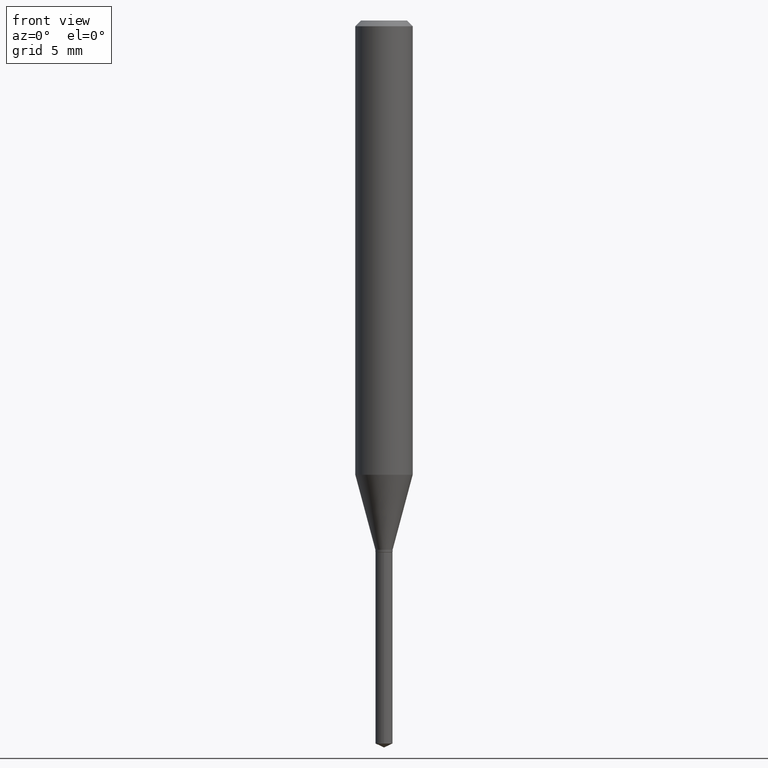
[diagram: clean part render]
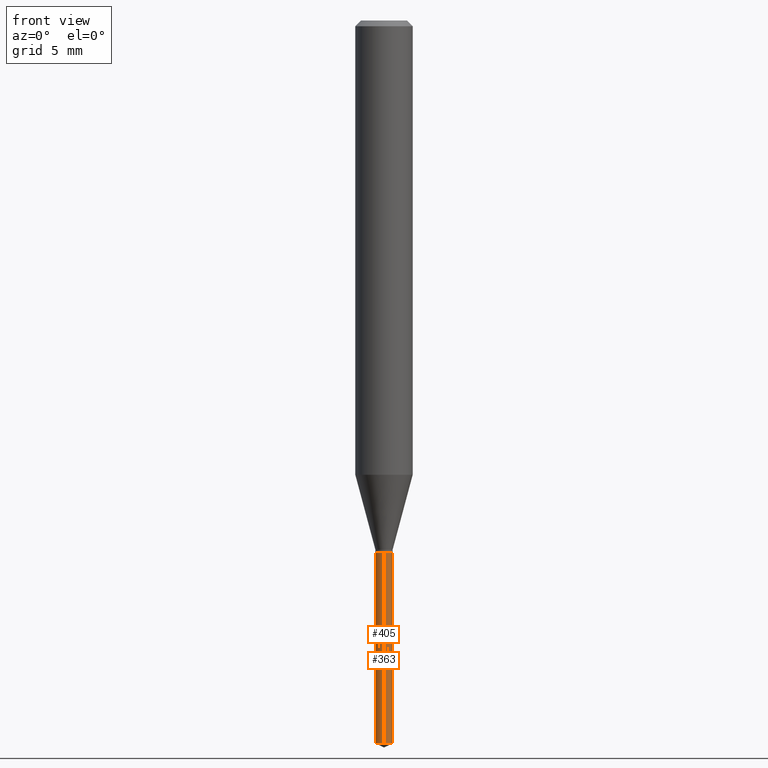
[diagram: same view with one multi-face feature highlighted, each face labeled with its STEP entity id]
A machine part, front view. The highlighted faces form ONE feature: a constant-radius fillet chain: 2 tangent blend faces with common blend radius 0.4496 mm. The faces share edges in the B-rep.
Their STEP definitions:
[1] entity #405 (Cylinder):
#5 = EDGE_CURVE ( 'NONE', #321, #193, #170, .T. ) ;
#12 = FACE_OUTER_BOUND ( 'NONE', #312, .T. ) ;
#33 = CARTESIAN_POINT ( 'NONE',  ( -1.235984393950201427E-16, -0.01770000000000382379, -1.094499999999999806 ) ) ;
#38 = LINE ( 'NONE', #443, #49 ) ;
#40 = VERTEX_POINT ( 'NONE', #355 ) ;
#49 = VECTOR ( 'NONE', #115, 39.37007874015748143 ) ;
#50 = DIRECTION ( 'NONE',  ( -2.445460715294871217E-29, 3.491492925458510144E-15, 1.000000000000000000 ) ) ;
#64 = DIRECTION ( 'NONE',  ( -2.445460715294871217E-29, 3.491492925458510144E-15, 1.000000000000000000 ) ) ;
#76 = CIRCLE ( 'NONE', #279, 0.01770000000000000046 ) ;
#99 = CARTESIAN_POINT ( 'NONE',  ( 2.676565608369631794E-29, -3.821426325363822773E-15, -1.094499999999999806 ) ) ;
#114 = CIRCLE ( 'NONE', #389, 0.01770000000000000046 ) ;
#115 = DIRECTION ( 'NONE',  ( -2.445460715294871217E-29, 3.491492925458510144E-15, 1.000000000000000000 ) ) ;
#133 = VECTOR ( 'NONE', #50, 39.37007874015748143 ) ;
#136 = CARTESIAN_POINT ( 'NONE',  ( 3.638478665683164429E-29, -5.194792339183186324E-15, -1.487846354450656605 ) ) ;
#169 = CYLINDRICAL_SURFACE ( 'NONE', #486, 0.01770000000000000046 ) ;
#170 = LINE ( 'NONE', #283, #133 ) ;
#193 = VERTEX_POINT ( 'NONE', #33 ) ;
#230 = CARTESIAN_POINT ( 'NONE',  ( 2.676565608369631794E-29, -3.821426325363822773E-15, -1.094499999999999806 ) ) ;
#244 = DIRECTION ( 'NONE',  ( -6.982962677686265133E-15, -1.000000000000000000, 0.000000000000000000 ) ) ;
#279 = AXIS2_PLACEMENT_3D ( 'NONE', #136, #64, #472 ) ;
#283 = CARTESIAN_POINT ( 'NONE',  ( -1.235984393950201427E-16, -0.01770000000000382379, -1.094499999999999806 ) ) ;
#307 = EDGE_CURVE ( 'NONE', #388, #321, #76, .T. ) ;
#312 = EDGE_LOOP ( 'NONE', ( #391, #471, #482, #314 ) ) ;
#314 = ORIENTED_EDGE ( 'NONE', *, *, #457, .F. ) ;
#320 = DIRECTION ( 'NONE',  ( -2.445460715294871217E-29, 3.491492925458510144E-15, 1.000000000000000000 ) ) ;
#321 = VERTEX_POINT ( 'NONE', #393 ) ;
#343 = DIRECTION ( 'NONE',  ( -6.982962677686265133E-15, -1.000000000000000000, 0.000000000000000000 ) ) ;
#355 = CARTESIAN_POINT ( 'NONE',  ( 1.257660642295741470E-16, 0.01769999999999617712, -1.094499999999999806 ) ) ;
#370 = DIRECTION ( 'NONE',  ( -2.445460715294871217E-29, 3.491492925458510144E-15, 1.000000000000000000 ) ) ;
#388 = VERTEX_POINT ( 'NONE', #432 ) ;
#389 = AXIS2_PLACEMENT_3D ( 'NONE', #230, #370, #343 ) ;
#391 = ORIENTED_EDGE ( 'NONE', *, *, #428, .F. ) ;
#393 = CARTESIAN_POINT ( 'NONE',  ( -1.235984393950105285E-16, -0.01770000000000519769, -1.487846354450656605 ) ) ;
#405 = ADVANCED_FACE ( 'NONE', ( #12 ), #169, .T. ) ;
#428 = EDGE_CURVE ( 'NONE', #388, #40, #38, .T. ) ;
#432 = CARTESIAN_POINT ( 'NONE',  ( 1.257660642295740977E-16, 0.01769999999999480669, -1.487846354450656605 ) ) ;
#443 = CARTESIAN_POINT ( 'NONE',  ( 1.257660642295644834E-16, 0.01769999999999617712, -1.094499999999999806 ) ) ;
#457 = EDGE_CURVE ( 'NONE', #40, #193, #114, .T. ) ;
#471 = ORIENTED_EDGE ( 'NONE', *, *, #307, .T. ) ;
#472 = DIRECTION ( 'NONE',  ( -6.982962677686265133E-15, -1.000000000000000000, 0.000000000000000000 ) ) ;
#482 = ORIENTED_EDGE ( 'NONE', *, *, #5, .T. ) ;
#486 = AXIS2_PLACEMENT_3D ( 'NONE', #99, #320, #244 ) ;
[2] entity #363 (Cylinder):
#5 = EDGE_CURVE ( 'NONE', #321, #193, #170, .T. ) ;
#22 = FACE_OUTER_BOUND ( 'NONE', #319, .T. ) ;
#26 = AXIS2_PLACEMENT_3D ( 'NONE', #28, #144, #182 ) ;
#28 = CARTESIAN_POINT ( 'NONE',  ( 2.676565608369631794E-29, -3.821426325363822773E-15, -1.094499999999999806 ) ) ;
#33 = CARTESIAN_POINT ( 'NONE',  ( -1.235984393950201427E-16, -0.01770000000000382379, -1.094499999999999806 ) ) ;
#38 = LINE ( 'NONE', #443, #49 ) ;
#40 = VERTEX_POINT ( 'NONE', #355 ) ;
#47 = ORIENTED_EDGE ( 'NONE', *, *, #5, .F. ) ;
#49 = VECTOR ( 'NONE', #115, 39.37007874015748143 ) ;
#50 = DIRECTION ( 'NONE',  ( -2.445460715294871217E-29, 3.491492925458510144E-15, 1.000000000000000000 ) ) ;
#62 = DIRECTION ( 'NONE',  ( -6.982962677686265133E-15, -1.000000000000000000, 0.000000000000000000 ) ) ;
#107 = CARTESIAN_POINT ( 'NONE',  ( 3.638478665683164429E-29, -5.194792339183186324E-15, -1.487846354450656605 ) ) ;
#115 = DIRECTION ( 'NONE',  ( -2.445460715294871217E-29, 3.491492925458510144E-15, 1.000000000000000000 ) ) ;
#133 = VECTOR ( 'NONE', #50, 39.37007874015748143 ) ;
#144 = DIRECTION ( 'NONE',  ( -2.445460715294871217E-29, 3.491492925458510144E-15, 1.000000000000000000 ) ) ;
#145 = AXIS2_PLACEMENT_3D ( 'NONE', #390, #324, #62 ) ;
#147 = DIRECTION ( 'NONE',  ( -2.445460715294871217E-29, 3.491492925458510144E-15, 1.000000000000000000 ) ) ;
#153 = ORIENTED_EDGE ( 'NONE', *, *, #428, .T. ) ;
#161 = CIRCLE ( 'NONE', #26, 0.01770000000000000046 ) ;
#170 = LINE ( 'NONE', #283, #133 ) ;
#182 = DIRECTION ( 'NONE',  ( -6.982962677686265133E-15, -1.000000000000000000, 0.000000000000000000 ) ) ;
#193 = VERTEX_POINT ( 'NONE', #33 ) ;
#202 = DIRECTION ( 'NONE',  ( -6.982962677686265133E-15, -1.000000000000000000, 0.000000000000000000 ) ) ;
#212 = EDGE_CURVE ( 'NONE', #193, #40, #161, .T. ) ;
#249 = CYLINDRICAL_SURFACE ( 'NONE', #145, 0.01770000000000000046 ) ;
#283 = CARTESIAN_POINT ( 'NONE',  ( -1.235984393950201427E-16, -0.01770000000000382379, -1.094499999999999806 ) ) ;
#319 = EDGE_LOOP ( 'NONE', ( #352, #153, #381, #47 ) ) ;
#321 = VERTEX_POINT ( 'NONE', #393 ) ;
#324 = DIRECTION ( 'NONE',  ( -2.445460715294871217E-29, 3.491492925458510144E-15, 1.000000000000000000 ) ) ;
#352 = ORIENTED_EDGE ( 'NONE', *, *, #402, .T. ) ;
#355 = CARTESIAN_POINT ( 'NONE',  ( 1.257660642295741470E-16, 0.01769999999999617712, -1.094499999999999806 ) ) ;
#363 = ADVANCED_FACE ( 'NONE', ( #22 ), #249, .T. ) ;
#381 = ORIENTED_EDGE ( 'NONE', *, *, #212, .F. ) ;
#388 = VERTEX_POINT ( 'NONE', #432 ) ;
#390 = CARTESIAN_POINT ( 'NONE',  ( 2.676565608369631794E-29, -3.821426325363822773E-15, -1.094499999999999806 ) ) ;
#393 = CARTESIAN_POINT ( 'NONE',  ( -1.235984393950105285E-16, -0.01770000000000519769, -1.487846354450656605 ) ) ;
#402 = EDGE_CURVE ( 'NONE', #321, #388, #415, .T. ) ;
#407 = AXIS2_PLACEMENT_3D ( 'NONE', #107, #147, #202 ) ;
#415 = CIRCLE ( 'NONE', #407, 0.01770000000000000046 ) ;
#428 = EDGE_CURVE ( 'NONE', #388, #40, #38, .T. ) ;
#432 = CARTESIAN_POINT ( 'NONE',  ( 1.257660642295740977E-16, 0.01769999999999480669, -1.487846354450656605 ) ) ;
#443 = CARTESIAN_POINT ( 'NONE',  ( 1.257660642295644834E-16, 0.01769999999999617712, -1.094499999999999806 ) ) ;